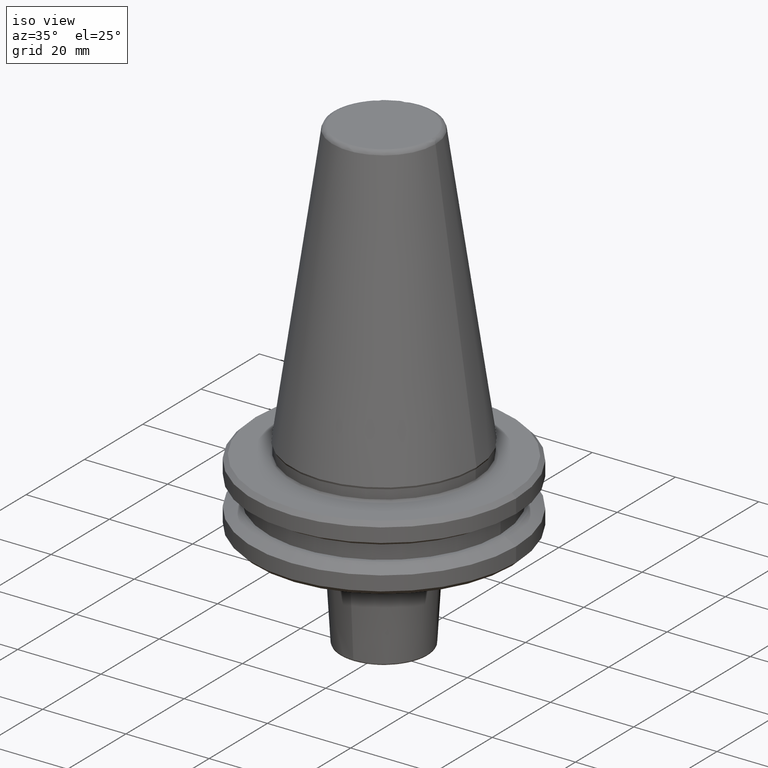
[diagram: clean part render]
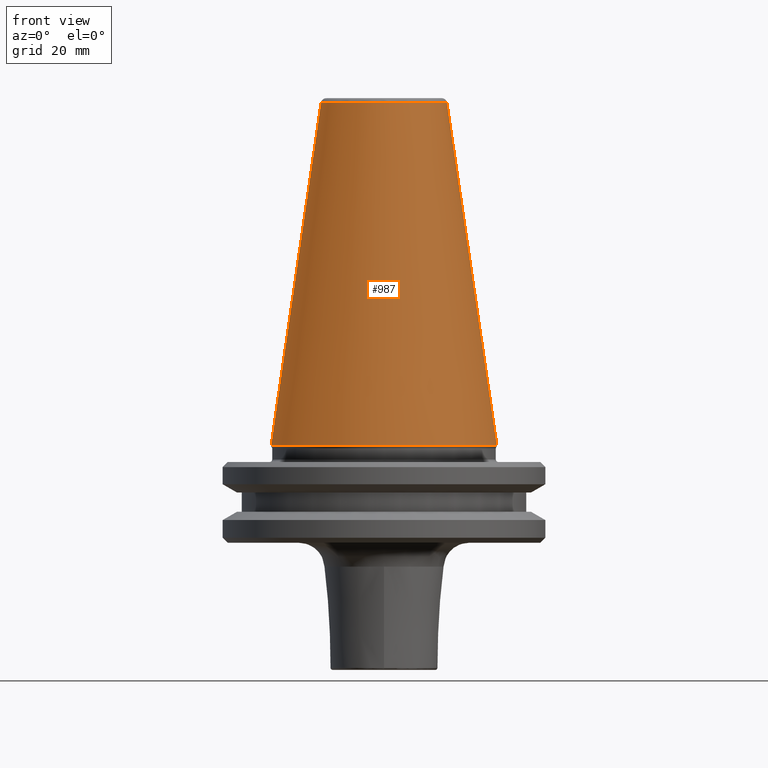
[diagram: tour spotlight — one face highlighted and labeled with its STEP entity id]
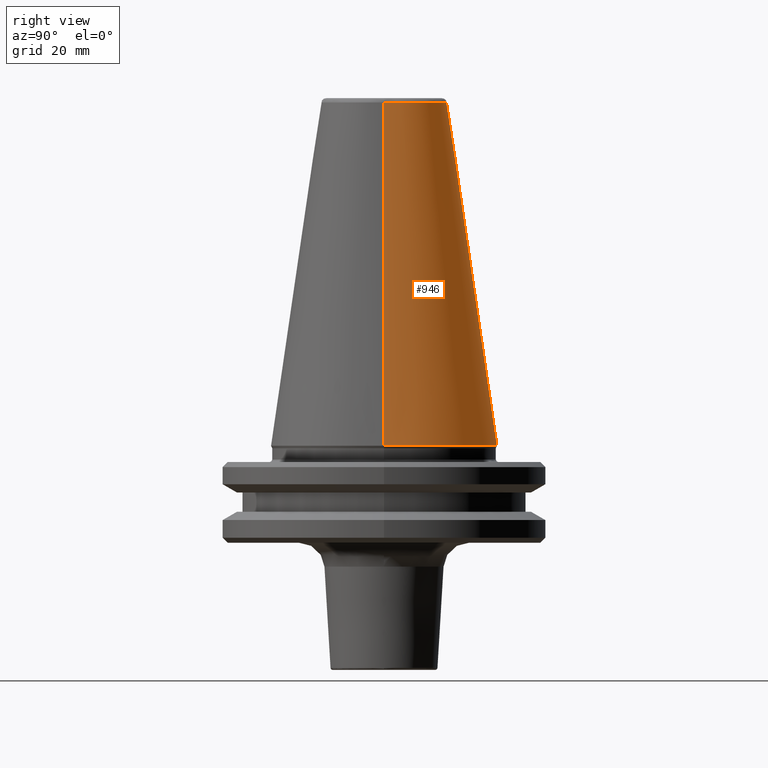
[diagram: tour spotlight — one face highlighted and labeled with its STEP entity id]
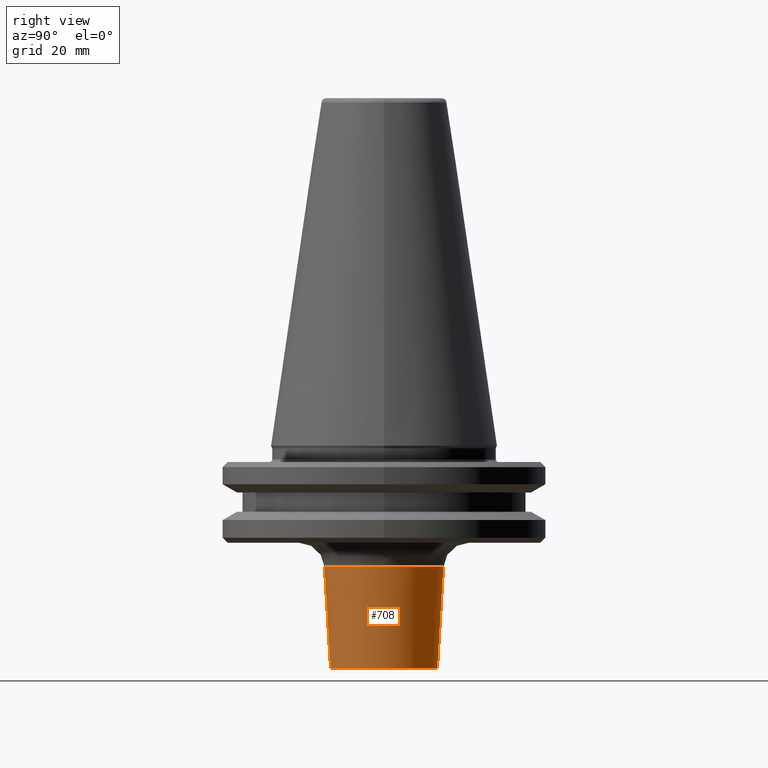
[diagram: tour spotlight — one face highlighted and labeled with its STEP entity id]
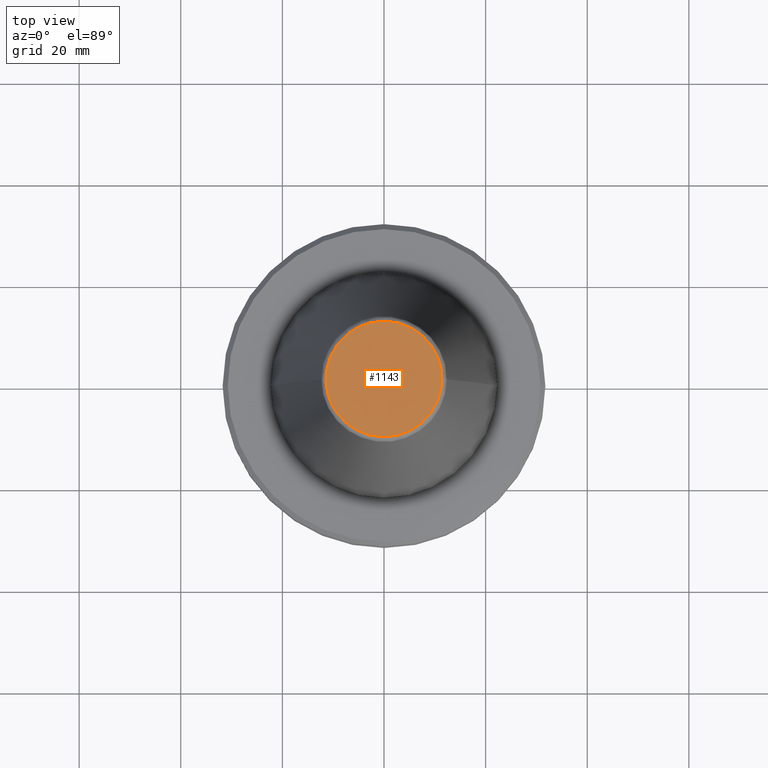
[diagram: tour spotlight — one face highlighted and labeled with its STEP entity id]
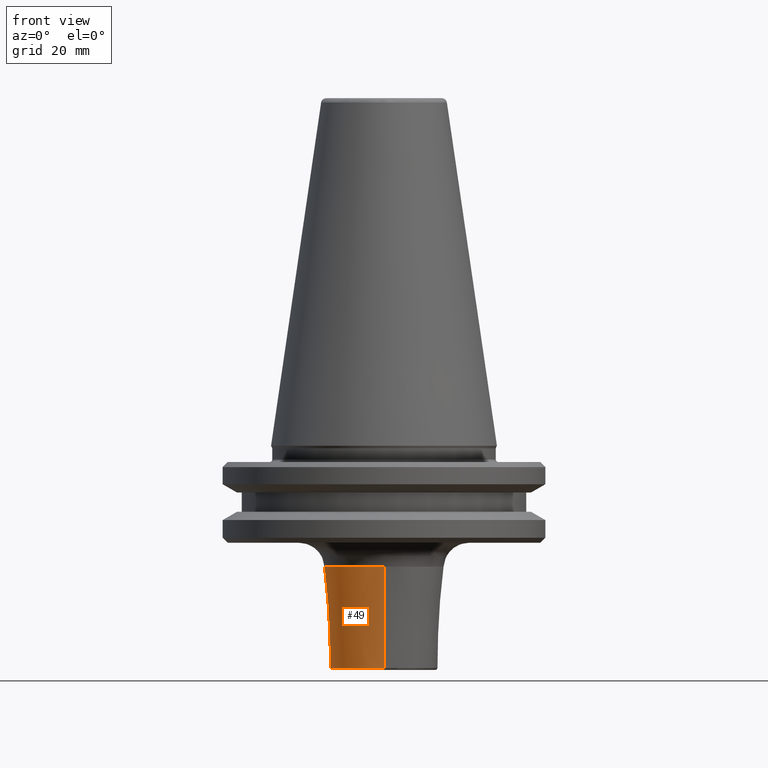
[diagram: tour spotlight — one face highlighted and labeled with its STEP entity id]
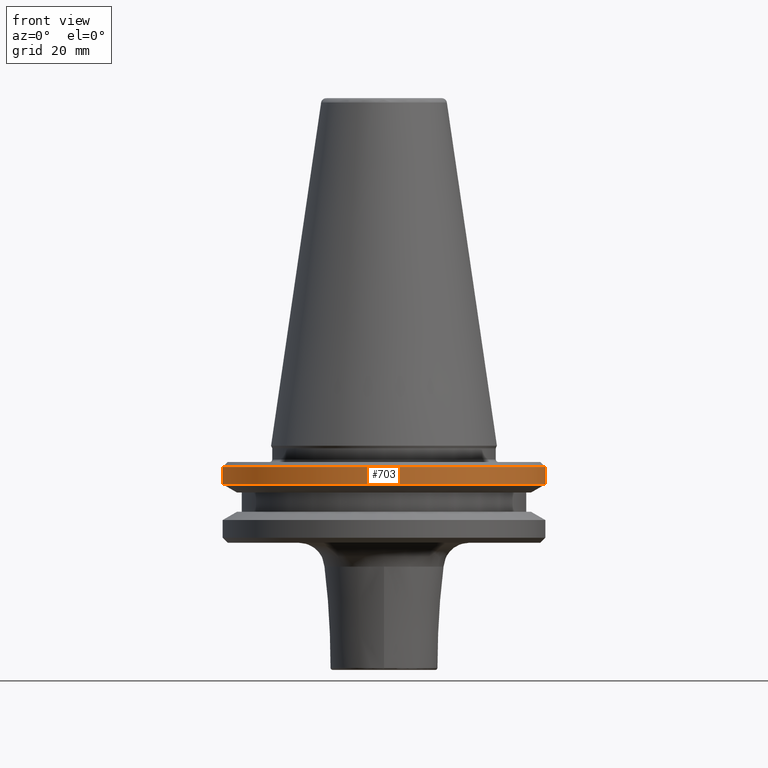
[diagram: tour spotlight — one face highlighted and labeled with its STEP entity id]
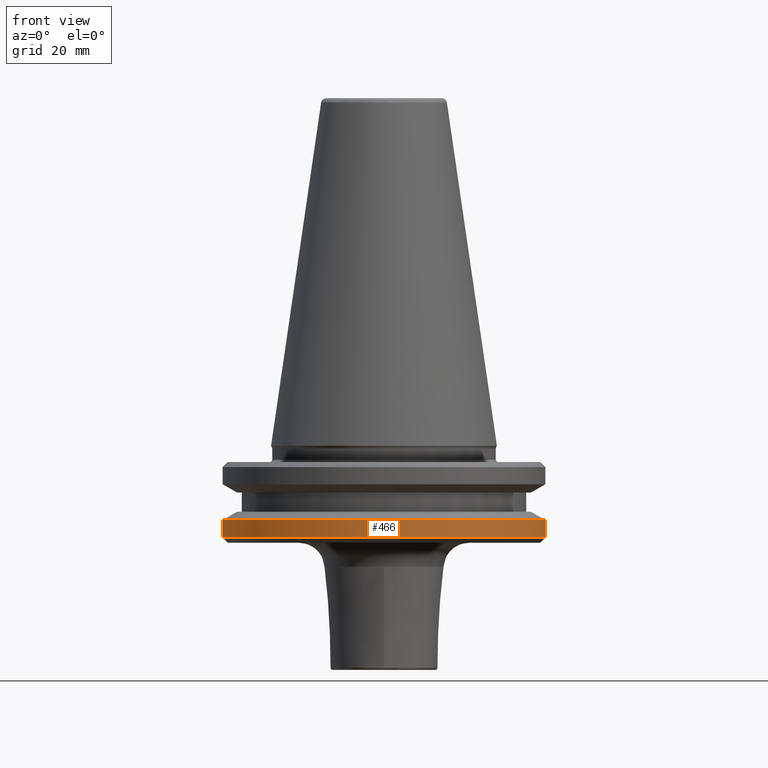
[diagram: tour spotlight — one face highlighted and labeled with its STEP entity id]
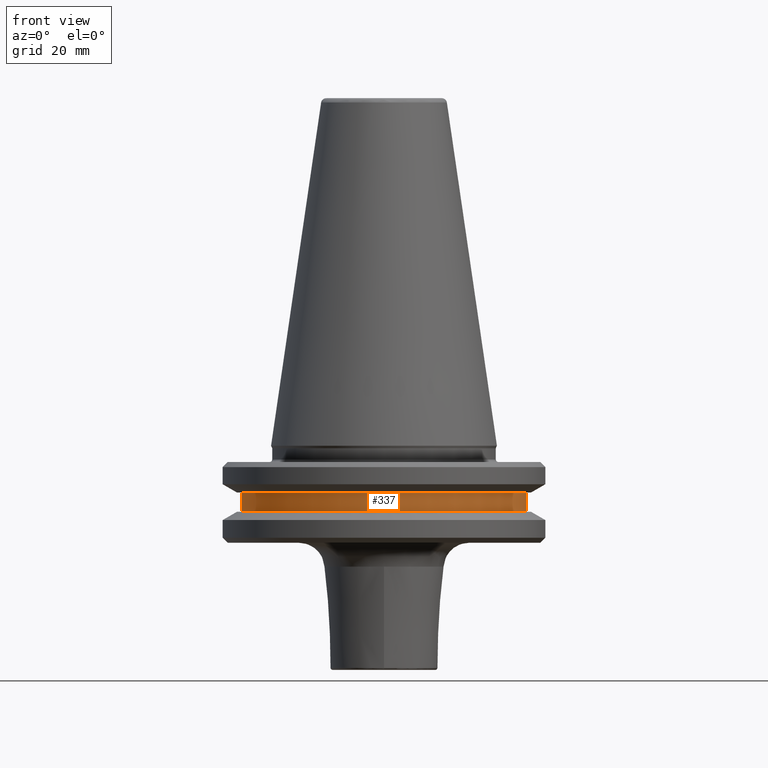
[diagram: tour spotlight — one face highlighted and labeled with its STEP entity id]
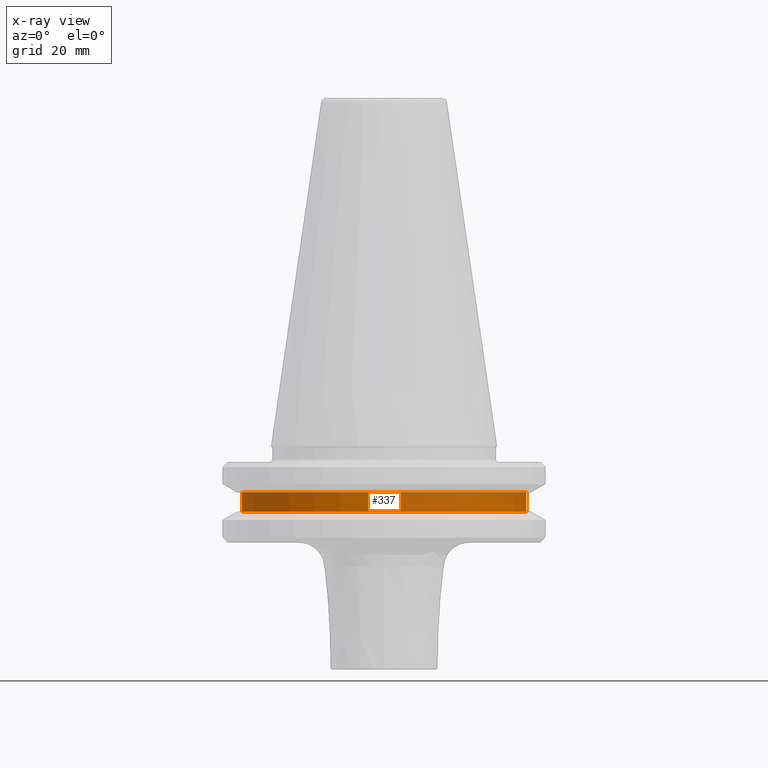
[diagram: x-ray of the same camera — body ghosted, this tour face saturated]
A machine part: a face-by-face anatomy tour. The part has 36 B-rep faces; the first image is the clean iso view, then the 8 largest visible faces are spotlighted one at a time (largest first), each with its STEP entity span.

Face 1 — front view, entity #987. In plain terms, the highlighted conical surface has half-angle 8.297 deg.
Definition (entity closure, byte-faithful):
#30 = EDGE_CURVE ( 'NONE', #1013, #96, #119, .T. ) ;
#73 = AXIS2_PLACEMENT_3D ( 'NONE', #425, #368, #396 ) ;
#96 = VERTEX_POINT ( 'NONE', #136 ) ;
#112 = VERTEX_POINT ( 'NONE', #157 ) ;
#119 = CIRCLE ( 'NONE', #1146, 12.37469537611110800 ) ;
#136 = CARTESIAN_POINT ( 'NONE',  ( -12.37469537611110800, 0.0000000000000000000, 67.54430822726729400 ) ) ;
#151 = DIRECTION ( 'NONE',  ( -1.000000000000000000, 0.0000000000000000000, 0.0000000000000000000 ) ) ;
#157 = CARTESIAN_POINT ( 'NONE',  ( -22.22500000000000500, 2.721777511104993200E-015, 0.0000000000000000000 ) ) ;
#311 = VECTOR ( 'NONE', #631, 1000.000000000000000 ) ;
#319 = CARTESIAN_POINT ( 'NONE',  ( 12.37469537611110800, 2.118620309691396900E-015, 67.54430822726729400 ) ) ;
#368 = DIRECTION ( 'NONE',  ( 0.0000000000000000000, 0.0000000000000000000, -1.000000000000000000 ) ) ;
#396 = DIRECTION ( 'NONE',  ( -1.000000000000000000, 0.0000000000000000000, 0.0000000000000000000 ) ) ;
#398 = DIRECTION ( 'NONE',  ( -1.000000000000000000, 0.0000000000000000000, 6.244223985518314900E-016 ) ) ;
#419 = DIRECTION ( 'NONE',  ( -0.0000000000000000000, -0.0000000000000000000, 1.000000000000000000 ) ) ;
#425 = CARTESIAN_POINT ( 'NONE',  ( 0.0000000000000000000, 0.0000000000000000000, 0.0000000000000000000 ) ) ;
#438 = CARTESIAN_POINT ( 'NONE',  ( 0.0000000000000000000, 0.0000000000000000000, 0.0000000000000000000 ) ) ;
#456 = CARTESIAN_POINT ( 'NONE',  ( 0.0000000000000000000, 0.0000000000000000000, 67.54430822726729400 ) ) ;
#534 = EDGE_CURVE ( 'NONE', #1013, #1304, #776, .T. ) ;
#631 = DIRECTION ( 'NONE',  ( -0.1443082272673070500, 0.0000000000000000000, -0.9895327864921743500 ) ) ;
#640 = CARTESIAN_POINT ( 'NONE',  ( -22.22500000000000100, 0.0000000000000000000, 0.0000000000000000000 ) ) ;
#658 = DIRECTION ( 'NONE',  ( 0.0000000000000000000, 0.0000000000000000000, -1.000000000000000000 ) ) ;
#725 = CIRCLE ( 'NONE', #827, 22.22500000000000100 ) ;
#765 = ORIENTED_EDGE ( 'NONE', *, *, #864, .T. ) ;
#776 = LINE ( 'NONE', #1265, #1048 ) ;
#827 = AXIS2_PLACEMENT_3D ( 'NONE', #438, #419, #398 ) ;
#864 = EDGE_CURVE ( 'NONE', #96, #112, #1002, .T. ) ;
#926 = CONICAL_SURFACE ( 'NONE', #73, 22.22500000000000100, 0.1448138465474190500 ) ;
#959 = CARTESIAN_POINT ( 'NONE',  ( 22.22500000000000500, 0.0000000000000000000, 0.0000000000000000000 ) ) ;
#987 = ADVANCED_FACE ( 'NONE', ( #1001 ), #926, .T. ) ;
#1001 = FACE_OUTER_BOUND ( 'NONE', #1226, .T. ) ;
#1002 = LINE ( 'NONE', #640, #311 ) ;
#1013 = VERTEX_POINT ( 'NONE', #319 ) ;
#1044 = ORIENTED_EDGE ( 'NONE', *, *, #30, .T. ) ;
#1048 = VECTOR ( 'NONE', #1383, 1000.000000000000000 ) ;
#1146 = AXIS2_PLACEMENT_3D ( 'NONE', #456, #658, #151 ) ;
#1226 = EDGE_LOOP ( 'NONE', ( #1421, #1044, #765, #1326 ) ) ;
#1265 = CARTESIAN_POINT ( 'NONE',  ( 22.22500000000000100, 2.721777511104992800E-015, 0.0000000000000000000 ) ) ;
#1304 = VERTEX_POINT ( 'NONE', #959 ) ;
#1326 = ORIENTED_EDGE ( 'NONE', *, *, #1448, .T. ) ;
#1383 = DIRECTION ( 'NONE',  ( 0.1443082272673070500, 1.767266086135363700E-017, -0.9895327864921743500 ) ) ;
#1421 = ORIENTED_EDGE ( 'NONE', *, *, #534, .F. ) ;
#1448 = EDGE_CURVE ( 'NONE', #112, #1304, #725, .T. ) ;

Face 2 — right view, entity #946. In plain terms, the highlighted conical surface has half-angle 8.297 deg.
Definition (entity closure, byte-faithful):
#43 = CIRCLE ( 'NONE', #1253, 12.37469537611110800 ) ;
#47 = EDGE_CURVE ( 'NONE', #96, #1013, #43, .T. ) ;
#96 = VERTEX_POINT ( 'NONE', #136 ) ;
#112 = VERTEX_POINT ( 'NONE', #157 ) ;
#136 = CARTESIAN_POINT ( 'NONE',  ( -12.37469537611110800, 0.0000000000000000000, 67.54430822726729400 ) ) ;
#157 = CARTESIAN_POINT ( 'NONE',  ( -22.22500000000000500, 2.721777511104993200E-015, 0.0000000000000000000 ) ) ;
#238 = DIRECTION ( 'NONE',  ( 0.0000000000000000000, 0.0000000000000000000, -1.000000000000000000 ) ) ;
#267 = DIRECTION ( 'NONE',  ( -1.000000000000000000, 0.0000000000000000000, 0.0000000000000000000 ) ) ;
#311 = VECTOR ( 'NONE', #631, 1000.000000000000000 ) ;
#319 = CARTESIAN_POINT ( 'NONE',  ( 12.37469537611110800, 2.118620309691396900E-015, 67.54430822726729400 ) ) ;
#388 = CONICAL_SURFACE ( 'NONE', #1498, 22.22500000000000100, 0.1448138465474190500 ) ;
#391 = DIRECTION ( 'NONE',  ( -0.0000000000000000000, -0.0000000000000000000, 1.000000000000000000 ) ) ;
#406 = ORIENTED_EDGE ( 'NONE', *, *, #534, .T. ) ;
#451 = EDGE_LOOP ( 'NONE', ( #852, #406, #1469, #1450 ) ) ;
#526 = DIRECTION ( 'NONE',  ( 0.0000000000000000000, 0.0000000000000000000, -1.000000000000000000 ) ) ;
#534 = EDGE_CURVE ( 'NONE', #1013, #1304, #776, .T. ) ;
#549 = CARTESIAN_POINT ( 'NONE',  ( 0.0000000000000000000, 0.0000000000000000000, 0.0000000000000000000 ) ) ;
#566 = DIRECTION ( 'NONE',  ( -1.000000000000000000, 0.0000000000000000000, 0.0000000000000000000 ) ) ;
#568 = FACE_OUTER_BOUND ( 'NONE', #451, .T. ) ;
#631 = DIRECTION ( 'NONE',  ( -0.1443082272673070500, 0.0000000000000000000, -0.9895327864921743500 ) ) ;
#632 = CARTESIAN_POINT ( 'NONE',  ( 0.0000000000000000000, 0.0000000000000000000, 67.54430822726729400 ) ) ;
#640 = CARTESIAN_POINT ( 'NONE',  ( -22.22500000000000100, 0.0000000000000000000, 0.0000000000000000000 ) ) ;
#749 = CIRCLE ( 'NONE', #1079, 22.22500000000000100 ) ;
#776 = LINE ( 'NONE', #1265, #1048 ) ;
#810 = CARTESIAN_POINT ( 'NONE',  ( 0.0000000000000000000, 0.0000000000000000000, 0.0000000000000000000 ) ) ;
#852 = ORIENTED_EDGE ( 'NONE', *, *, #47, .T. ) ;
#864 = EDGE_CURVE ( 'NONE', #96, #112, #1002, .T. ) ;
#946 = ADVANCED_FACE ( 'NONE', ( #568 ), #388, .T. ) ;
#959 = CARTESIAN_POINT ( 'NONE',  ( 22.22500000000000500, 0.0000000000000000000, 0.0000000000000000000 ) ) ;
#1002 = LINE ( 'NONE', #640, #311 ) ;
#1013 = VERTEX_POINT ( 'NONE', #319 ) ;
#1048 = VECTOR ( 'NONE', #1383, 1000.000000000000000 ) ;
#1079 = AXIS2_PLACEMENT_3D ( 'NONE', #810, #391, #1125 ) ;
#1125 = DIRECTION ( 'NONE',  ( -1.000000000000000000, 0.0000000000000000000, 6.244223985518314900E-016 ) ) ;
#1253 = AXIS2_PLACEMENT_3D ( 'NONE', #632, #238, #267 ) ;
#1265 = CARTESIAN_POINT ( 'NONE',  ( 22.22500000000000100, 2.721777511104992800E-015, 0.0000000000000000000 ) ) ;
#1304 = VERTEX_POINT ( 'NONE', #959 ) ;
#1368 = EDGE_CURVE ( 'NONE', #1304, #112, #749, .T. ) ;
#1383 = DIRECTION ( 'NONE',  ( 0.1443082272673070500, 1.767266086135363700E-017, -0.9895327864921743500 ) ) ;
#1450 = ORIENTED_EDGE ( 'NONE', *, *, #864, .F. ) ;
#1469 = ORIENTED_EDGE ( 'NONE', *, *, #1368, .T. ) ;
#1498 = AXIS2_PLACEMENT_3D ( 'NONE', #549, #526, #566 ) ;

Face 3 — right view, entity #708. In plain terms, the highlighted conical surface has half-angle 3.434 deg.
Definition (entity closure, byte-faithful):
#145 = CIRCLE ( 'NONE', #823, 10.52256258502253100 ) ;
#160 = DIRECTION ( 'NONE',  ( 1.000000000000000000, 0.0000000000000000000, -1.318860087139576000E-015 ) ) ;
#162 = DIRECTION ( 'NONE',  ( 0.0000000000000000000, 0.0000000000000000000, 1.000000000000000000 ) ) ;
#165 = CARTESIAN_POINT ( 'NONE',  ( 0.0000000000000000000, 0.0000000000000000000, -43.72395691629116500 ) ) ;
#190 = ORIENTED_EDGE ( 'NONE', *, *, #1436, .T. ) ;
#230 = VERTEX_POINT ( 'NONE', #513 ) ;
#332 = EDGE_LOOP ( 'NONE', ( #446, #790, #1531, #1374, #190, #1427 ) ) ;
#366 = AXIS2_PLACEMENT_3D ( 'NONE', #1033, #899, #981 ) ;
#405 = CARTESIAN_POINT ( 'NONE',  ( 1.435037162066411100E-015, 11.71796768721838700, -23.80053854636027200 ) ) ;
#409 = AXIS2_PLACEMENT_3D ( 'NONE', #165, #162, #160 ) ;
#446 = ORIENTED_EDGE ( 'NONE', *, *, #464, .T. ) ;
#464 = EDGE_CURVE ( 'NONE', #1426, #564, #145, .T. ) ;
#513 = CARTESIAN_POINT ( 'NONE',  ( 11.71796768721838500, 0.0000000000000000000, -23.80053854636027200 ) ) ;
#518 = EDGE_CURVE ( 'NONE', #1426, #908, #1349, .T. ) ;
#557 = CARTESIAN_POINT ( 'NONE',  ( 0.0000000000000000000, -11.71796768721838700, -23.80053854636027200 ) ) ;
#564 = VERTEX_POINT ( 'NONE', #902 ) ;
#570 = CARTESIAN_POINT ( 'NONE',  ( 0.0000000000000000000, 0.0000000000000000000, -23.80053854636027200 ) ) ;
#635 = DIRECTION ( 'NONE',  ( 1.000000000000000000, 0.0000000000000000000, 0.0000000000000000000 ) ) ;
#638 = DIRECTION ( 'NONE',  ( -0.0000000000000000000, -0.0000000000000000000, -1.000000000000000000 ) ) ;
#643 = DIRECTION ( 'NONE',  ( -0.0000000000000000000, -0.0000000000000000000, -1.000000000000000000 ) ) ;
#645 = CARTESIAN_POINT ( 'NONE',  ( 0.0000000000000000000, 0.0000000000000000000, -23.80053854636027200 ) ) ;
#693 = DIRECTION ( 'NONE',  ( 1.000000000000000000, 0.0000000000000000000, 0.0000000000000000000 ) ) ;
#708 = ADVANCED_FACE ( 'NONE', ( #1429 ), #1471, .T. ) ;
#710 = DIRECTION ( 'NONE',  ( 7.334690213358278900E-018, 0.05989229072794669000, 0.9982048454657787000 ) ) ;
#790 = ORIENTED_EDGE ( 'NONE', *, *, #1023, .T. ) ;
#791 = VECTOR ( 'NONE', #710, 1000.000000000000000 ) ;
#794 = VERTEX_POINT ( 'NONE', #846 ) ;
#823 = AXIS2_PLACEMENT_3D ( 'NONE', #1025, #1135, #1142 ) ;
#846 = CARTESIAN_POINT ( 'NONE',  ( 1.361839710461982500E-015, 10.52256258502253100, -43.72395691629116500 ) ) ;
#859 = EDGE_CURVE ( 'NONE', #794, #1288, #1156, .T. ) ;
#892 = AXIS2_PLACEMENT_3D ( 'NONE', #645, #638, #635 ) ;
#899 = DIRECTION ( 'NONE',  ( 0.0000000000000000000, -1.480396193504606100E-016, 1.000000000000000000 ) ) ;
#902 = CARTESIAN_POINT ( 'NONE',  ( 10.52256258502253100, 0.0000000000000000000, -43.72395691629117200 ) ) ;
#908 = VERTEX_POINT ( 'NONE', #557 ) ;
#914 = CARTESIAN_POINT ( 'NONE',  ( 0.0000000000000000000, -11.71796768721838700, -23.80053854636027600 ) ) ;
#940 = AXIS2_PLACEMENT_3D ( 'NONE', #570, #643, #693 ) ;
#960 = CARTESIAN_POINT ( 'NONE',  ( 0.0000000000000000000, -10.52256258502253100, -43.72395691629116500 ) ) ;
#981 = DIRECTION ( 'NONE',  ( 0.0000000000000000000, -1.000000000000000000, -2.960792387009211800E-016 ) ) ;
#1023 = EDGE_CURVE ( 'NONE', #564, #794, #1504, .T. ) ;
#1025 = CARTESIAN_POINT ( 'NONE',  ( 0.0000000000000000000, 0.0000000000000000000, -43.72395691629116500 ) ) ;
#1033 = CARTESIAN_POINT ( 'NONE',  ( 0.0000000000000000000, 0.0000000000000000000, -23.80053854636027200 ) ) ;
#1135 = DIRECTION ( 'NONE',  ( 0.0000000000000000000, 0.0000000000000000000, 1.000000000000000000 ) ) ;
#1136 = CIRCLE ( 'NONE', #892, 11.71796768721838500 ) ;
#1142 = DIRECTION ( 'NONE',  ( 1.000000000000000000, 0.0000000000000000000, -1.318860087139576000E-015 ) ) ;
#1156 = LINE ( 'NONE', #1281, #791 ) ;
#1170 = CIRCLE ( 'NONE', #940, 11.71796768721838500 ) ;
#1208 = EDGE_CURVE ( 'NONE', #1288, #230, #1170, .T. ) ;
#1235 = VECTOR ( 'NONE', #1397, 1000.000000000000000 ) ;
#1281 = CARTESIAN_POINT ( 'NONE',  ( 1.435037162066411100E-015, 11.71796768721838700, -23.80053854636026900 ) ) ;
#1288 = VERTEX_POINT ( 'NONE', #405 ) ;
#1349 = LINE ( 'NONE', #914, #1235 ) ;
#1374 = ORIENTED_EDGE ( 'NONE', *, *, #1208, .T. ) ;
#1397 = DIRECTION ( 'NONE',  ( 0.0000000000000000000, -0.05989229072794698100, 0.9982048454657787000 ) ) ;
#1426 = VERTEX_POINT ( 'NONE', #960 ) ;
#1427 = ORIENTED_EDGE ( 'NONE', *, *, #518, .F. ) ;
#1429 = FACE_OUTER_BOUND ( 'NONE', #332, .T. ) ;
#1436 = EDGE_CURVE ( 'NONE', #230, #908, #1136, .T. ) ;
#1471 = CONICAL_SURFACE ( 'NONE', #366, 11.71796768721838700, 0.05992815512120799900 ) ;
#1504 = CIRCLE ( 'NONE', #409, 10.52256258502253100 ) ;
#1531 = ORIENTED_EDGE ( 'NONE', *, *, #859, .T. ) ;

Face 4 — top view, entity #1143. In plain terms, the highlighted planar face has unit normal (0, 0, 1).
Definition (entity closure, byte-faithful):
#21 = CARTESIAN_POINT ( 'NONE',  ( -11.38516258961893100, 1.418516855507481500E-015, 68.39999999999999100 ) ) ;
#37 = CARTESIAN_POINT ( 'NONE',  ( -11.38516258961893400, -22.77032517923785800, 68.39999999999999100 ) ) ;
#51 = CARTESIAN_POINT ( 'NONE',  ( 11.38516258961893100, -22.77032517923785800, 68.39999999999999100 ) ) ;
#69 = CARTESIAN_POINT ( 'NONE',  ( 11.38516258961893100, 0.0000000000000000000, 68.39999999999999100 ) ) ;
#110 = EDGE_LOOP ( 'NONE', ( #832, #514 ) ) ;
#153 =( BOUNDED_CURVE ( )  B_SPLINE_CURVE ( 3, ( #69, #51, #37, #21 ),
 .UNSPECIFIED., .F., .F. ) 
 B_SPLINE_CURVE_WITH_KNOTS ( ( 4, 4 ),
 ( 0.0000000000000000000, 1.000000000000000000 ),
 .UNSPECIFIED. ) 
 CURVE ( )  GEOMETRIC_REPRESENTATION_ITEM ( )  RATIONAL_B_SPLINE_CURVE ( ( 1.000000000000000000, 0.3333333333333333700, 0.3333333333333333700, 1.000000000000000000 ) ) 
 REPRESENTATION_ITEM ( '' )  );
#218 = AXIS2_PLACEMENT_3D ( 'NONE', #1327, #1394, #1345 ) ;
#329 = CARTESIAN_POINT ( 'NONE',  ( -11.38516258961893100, 1.418516855507481500E-015, 68.39999999999999100 ) ) ;
#365 =( BOUNDED_CURVE ( )  B_SPLINE_CURVE ( 3, ( #680, #730, #829, #676 ),
 .UNSPECIFIED., .F., .F. ) 
 B_SPLINE_CURVE_WITH_KNOTS ( ( 4, 4 ),
 ( 0.0000000000000000000, 1.000000000000000000 ),
 .UNSPECIFIED. ) 
 CURVE ( )  GEOMETRIC_REPRESENTATION_ITEM ( )  RATIONAL_B_SPLINE_CURVE ( ( 1.000000000000000000, 0.3333333333333333700, 0.3333333333333333700, 1.000000000000000000 ) ) 
 REPRESENTATION_ITEM ( '' )  );
#514 = ORIENTED_EDGE ( 'NONE', *, *, #1094, .F. ) ;
#676 = CARTESIAN_POINT ( 'NONE',  ( 11.38516258961893100, 0.0000000000000000000, 68.39999999999999100 ) ) ;
#680 = CARTESIAN_POINT ( 'NONE',  ( -11.38516258961893100, 1.418516855507481500E-015, 68.39999999999999100 ) ) ;
#730 = CARTESIAN_POINT ( 'NONE',  ( -11.38516258961892700, 22.77032517923785800, 68.39999999999999100 ) ) ;
#829 = CARTESIAN_POINT ( 'NONE',  ( 11.38516258961893100, 22.77032517923785800, 68.39999999999999100 ) ) ;
#832 = ORIENTED_EDGE ( 'NONE', *, *, #856, .F. ) ;
#856 = EDGE_CURVE ( 'NONE', #1329, #1129, #365, .T. ) ;
#919 = CARTESIAN_POINT ( 'NONE',  ( 11.38516258961893100, 0.0000000000000000000, 68.39999999999999100 ) ) ;
#1094 = EDGE_CURVE ( 'NONE', #1129, #1329, #153, .T. ) ;
#1129 = VERTEX_POINT ( 'NONE', #919 ) ;
#1143 = ADVANCED_FACE ( 'NONE', ( #1392 ), #1252, .T. ) ;
#1252 = PLANE ( 'NONE',  #218 ) ;
#1327 = CARTESIAN_POINT ( 'NONE',  ( 0.0000000000000000000, -8.337524199435086500E-014, 68.39999999999999100 ) ) ;
#1329 = VERTEX_POINT ( 'NONE', #329 ) ;
#1345 = DIRECTION ( 'NONE',  ( 1.000000000000000000, 0.0000000000000000000, -0.0000000000000000000 ) ) ;
#1392 = FACE_OUTER_BOUND ( 'NONE', #110, .T. ) ;
#1394 = DIRECTION ( 'NONE',  ( 0.0000000000000000000, 0.0000000000000000000, 1.000000000000000000 ) ) ;

Face 5 — front view, entity #49. In plain terms, the highlighted conical surface has half-angle 3.434 deg.
Definition (entity closure, byte-faithful):
#2 = CARTESIAN_POINT ( 'NONE',  ( -10.52256258502253100, 1.288642258857554200E-015, -43.72395691629115800 ) ) ;
#49 = ADVANCED_FACE ( 'NONE', ( #1134 ), #194, .T. ) ;
#194 = CONICAL_SURFACE ( 'NONE', #1297, 11.71796768721838700, 0.05992815512120799900 ) ;
#303 = DIRECTION ( 'NONE',  ( 1.000000000000000000, 0.0000000000000000000, -1.318860087139576000E-015 ) ) ;
#318 = DIRECTION ( 'NONE',  ( 0.0000000000000000000, 0.0000000000000000000, 1.000000000000000000 ) ) ;
#323 = CARTESIAN_POINT ( 'NONE',  ( 0.0000000000000000000, 0.0000000000000000000, -43.72395691629116500 ) ) ;
#326 = CARTESIAN_POINT ( 'NONE',  ( -11.71796768721838500, 1.740649254289672300E-015, -23.80053854636027200 ) ) ;
#339 = DIRECTION ( 'NONE',  ( 0.0000000000000000000, -1.000000000000000000, -2.960792387009211800E-016 ) ) ;
#363 = DIRECTION ( 'NONE',  ( 0.0000000000000000000, -1.480396193504606100E-016, 1.000000000000000000 ) ) ;
#371 = DIRECTION ( 'NONE',  ( 1.000000000000000000, 0.0000000000000000000, 0.0000000000000000000 ) ) ;
#376 = DIRECTION ( 'NONE',  ( -0.0000000000000000000, -0.0000000000000000000, -1.000000000000000000 ) ) ;
#379 = CARTESIAN_POINT ( 'NONE',  ( 0.0000000000000000000, 0.0000000000000000000, -23.80053854636027200 ) ) ;
#399 = DIRECTION ( 'NONE',  ( 1.000000000000000000, 0.0000000000000000000, 0.0000000000000000000 ) ) ;
#400 = DIRECTION ( 'NONE',  ( -0.0000000000000000000, -0.0000000000000000000, -1.000000000000000000 ) ) ;
#401 = AXIS2_PLACEMENT_3D ( 'NONE', #822, #843, #842 ) ;
#402 = CARTESIAN_POINT ( 'NONE',  ( 0.0000000000000000000, 0.0000000000000000000, -23.80053854636027200 ) ) ;
#405 = CARTESIAN_POINT ( 'NONE',  ( 1.435037162066411100E-015, 11.71796768721838700, -23.80053854636027200 ) ) ;
#441 = CARTESIAN_POINT ( 'NONE',  ( 0.0000000000000000000, 0.0000000000000000000, -23.80053854636027200 ) ) ;
#494 = CIRCLE ( 'NONE', #401, 10.52256258502253100 ) ;
#518 = EDGE_CURVE ( 'NONE', #1426, #908, #1349, .T. ) ;
#557 = CARTESIAN_POINT ( 'NONE',  ( 0.0000000000000000000, -11.71796768721838700, -23.80053854636027200 ) ) ;
#565 = CIRCLE ( 'NONE', #641, 11.71796768721838500 ) ;
#626 = CIRCLE ( 'NONE', #767, 10.52256258502253100 ) ;
#641 = AXIS2_PLACEMENT_3D ( 'NONE', #402, #400, #399 ) ;
#649 = EDGE_LOOP ( 'NONE', ( #992, #1449, #851, #789, #788, #886 ) ) ;
#659 = CIRCLE ( 'NONE', #897, 11.71796768721838500 ) ;
#710 = DIRECTION ( 'NONE',  ( 7.334690213358278900E-018, 0.05989229072794669000, 0.9982048454657787000 ) ) ;
#762 = EDGE_CURVE ( 'NONE', #1107, #1426, #494, .T. ) ;
#767 = AXIS2_PLACEMENT_3D ( 'NONE', #323, #318, #303 ) ;
#788 = ORIENTED_EDGE ( 'NONE', *, *, #965, .T. ) ;
#789 = ORIENTED_EDGE ( 'NONE', *, *, #518, .T. ) ;
#791 = VECTOR ( 'NONE', #710, 1000.000000000000000 ) ;
#794 = VERTEX_POINT ( 'NONE', #846 ) ;
#822 = CARTESIAN_POINT ( 'NONE',  ( 0.0000000000000000000, 0.0000000000000000000, -43.72395691629116500 ) ) ;
#842 = DIRECTION ( 'NONE',  ( 1.000000000000000000, 0.0000000000000000000, -1.318860087139576000E-015 ) ) ;
#843 = DIRECTION ( 'NONE',  ( 0.0000000000000000000, 0.0000000000000000000, 1.000000000000000000 ) ) ;
#846 = CARTESIAN_POINT ( 'NONE',  ( 1.361839710461982500E-015, 10.52256258502253100, -43.72395691629116500 ) ) ;
#851 = ORIENTED_EDGE ( 'NONE', *, *, #762, .T. ) ;
#859 = EDGE_CURVE ( 'NONE', #794, #1288, #1156, .T. ) ;
#886 = ORIENTED_EDGE ( 'NONE', *, *, #977, .T. ) ;
#897 = AXIS2_PLACEMENT_3D ( 'NONE', #379, #376, #371 ) ;
#908 = VERTEX_POINT ( 'NONE', #557 ) ;
#914 = CARTESIAN_POINT ( 'NONE',  ( 0.0000000000000000000, -11.71796768721838700, -23.80053854636027600 ) ) ;
#960 = CARTESIAN_POINT ( 'NONE',  ( 0.0000000000000000000, -10.52256258502253100, -43.72395691629116500 ) ) ;
#965 = EDGE_CURVE ( 'NONE', #908, #1012, #565, .T. ) ;
#977 = EDGE_CURVE ( 'NONE', #1012, #1288, #659, .T. ) ;
#992 = ORIENTED_EDGE ( 'NONE', *, *, #859, .F. ) ;
#1012 = VERTEX_POINT ( 'NONE', #326 ) ;
#1107 = VERTEX_POINT ( 'NONE', #2 ) ;
#1134 = FACE_OUTER_BOUND ( 'NONE', #649, .T. ) ;
#1156 = LINE ( 'NONE', #1281, #791 ) ;
#1235 = VECTOR ( 'NONE', #1397, 1000.000000000000000 ) ;
#1281 = CARTESIAN_POINT ( 'NONE',  ( 1.435037162066411100E-015, 11.71796768721838700, -23.80053854636026900 ) ) ;
#1288 = VERTEX_POINT ( 'NONE', #405 ) ;
#1297 = AXIS2_PLACEMENT_3D ( 'NONE', #441, #363, #339 ) ;
#1349 = LINE ( 'NONE', #914, #1235 ) ;
#1397 = DIRECTION ( 'NONE',  ( 0.0000000000000000000, -0.05989229072794698100, 0.9982048454657787000 ) ) ;
#1426 = VERTEX_POINT ( 'NONE', #960 ) ;
#1449 = ORIENTED_EDGE ( 'NONE', *, *, #1477, .T. ) ;
#1477 = EDGE_CURVE ( 'NONE', #794, #1107, #626, .T. ) ;

Face 6 — front view, entity #703. In plain terms, the highlighted cylindrical surface (partial cylindrical patch) has radius 31.75 mm, axis along (0, 0, 1).
Definition (entity closure, byte-faithful):
#14 = VERTEX_POINT ( 'NONE', #582 ) ;
#24 = AXIS2_PLACEMENT_3D ( 'NONE', #310, #301, #298 ) ;
#78 = AXIS2_PLACEMENT_3D ( 'NONE', #420, #416, #414 ) ;
#114 = ORIENTED_EDGE ( 'NONE', *, *, #1010, .T. ) ;
#250 = CIRCLE ( 'NONE', #24, 31.75000000000000000 ) ;
#283 = CIRCLE ( 'NONE', #78, 31.74999999999983300 ) ;
#298 = DIRECTION ( 'NONE',  ( 1.000000000000000000, 0.0000000000000000000, 0.0000000000000000000 ) ) ;
#301 = DIRECTION ( 'NONE',  ( 0.0000000000000000000, 0.0000000000000000000, 1.000000000000000000 ) ) ;
#307 = EDGE_LOOP ( 'NONE', ( #1258, #114, #1076, #428 ) ) ;
#310 = CARTESIAN_POINT ( 'NONE',  ( 0.0000000000000000000, 0.0000000000000000000, -7.578163357943284800 ) ) ;
#392 = VERTEX_POINT ( 'NONE', #1120 ) ;
#414 = DIRECTION ( 'NONE',  ( 1.000000000000000000, 0.0000000000000000000, 0.0000000000000000000 ) ) ;
#416 = DIRECTION ( 'NONE',  ( -0.0000000000000000000, -0.0000000000000000000, 1.000000000000000000 ) ) ;
#420 = CARTESIAN_POINT ( 'NONE',  ( 0.0000000000000000000, 0.0000000000000000000, -4.199999999999926500 ) ) ;
#428 = ORIENTED_EDGE ( 'NONE', *, *, #958, .F. ) ;
#582 = CARTESIAN_POINT ( 'NONE',  ( 31.75000000000000000, 0.0000000000000000000, -7.578163357943284800 ) ) ;
#584 = CARTESIAN_POINT ( 'NONE',  ( 31.75000000000000000, 0.0000000000000000000, 113.5216080541959500 ) ) ;
#595 = DIRECTION ( 'NONE',  ( 0.0000000000000000000, 0.0000000000000000000, 1.000000000000000000 ) ) ;
#604 = VERTEX_POINT ( 'NONE', #961 ) ;
#618 = CARTESIAN_POINT ( 'NONE',  ( -31.75000000000000000, 3.888253587292846500E-015, -7.578163357943284800 ) ) ;
#703 = ADVANCED_FACE ( 'NONE', ( #1360 ), #971, .T. ) ;
#752 = AXIS2_PLACEMENT_3D ( 'NONE', #974, #989, #986 ) ;
#779 = EDGE_CURVE ( 'NONE', #888, #392, #982, .T. ) ;
#857 = DIRECTION ( 'NONE',  ( 0.0000000000000000000, 0.0000000000000000000, 1.000000000000000000 ) ) ;
#888 = VERTEX_POINT ( 'NONE', #618 ) ;
#896 = EDGE_CURVE ( 'NONE', #14, #604, #1380, .T. ) ;
#937 = VECTOR ( 'NONE', #857, 1000.000000000000000 ) ;
#958 = EDGE_CURVE ( 'NONE', #392, #604, #283, .T. ) ;
#961 = CARTESIAN_POINT ( 'NONE',  ( 31.74999999999983300, 0.0000000000000000000, -4.199999999999926500 ) ) ;
#971 = CYLINDRICAL_SURFACE ( 'NONE', #752, 31.75000000000000000 ) ;
#974 = CARTESIAN_POINT ( 'NONE',  ( 0.0000000000000000000, 0.0000000000000000000, 113.5216080541959500 ) ) ;
#982 = LINE ( 'NONE', #1047, #937 ) ;
#986 = DIRECTION ( 'NONE',  ( 1.000000000000000000, 0.0000000000000000000, 0.0000000000000000000 ) ) ;
#989 = DIRECTION ( 'NONE',  ( 0.0000000000000000000, 0.0000000000000000000, 1.000000000000000000 ) ) ;
#1010 = EDGE_CURVE ( 'NONE', #888, #14, #250, .T. ) ;
#1047 = CARTESIAN_POINT ( 'NONE',  ( -31.75000000000000000, 3.888253587292846500E-015, 113.5216080541959500 ) ) ;
#1076 = ORIENTED_EDGE ( 'NONE', *, *, #896, .T. ) ;
#1120 = CARTESIAN_POINT ( 'NONE',  ( -31.74999999999983300, 3.888253587292836200E-015, -4.199999999999926500 ) ) ;
#1228 = VECTOR ( 'NONE', #595, 1000.000000000000000 ) ;
#1258 = ORIENTED_EDGE ( 'NONE', *, *, #779, .F. ) ;
#1360 = FACE_OUTER_BOUND ( 'NONE', #307, .T. ) ;
#1380 = LINE ( 'NONE', #584, #1228 ) ;

Face 7 — front view, entity #466. In plain terms, the highlighted cylindrical surface (partial cylindrical patch) has radius 31.75 mm, axis along (0, 0, 1).
Definition (entity closure, byte-faithful):
#8 = CARTESIAN_POINT ( 'NONE',  ( -31.75000000000000000, 3.888253587292846500E-015, -14.62183664205671200 ) ) ;
#99 = CARTESIAN_POINT ( 'NONE',  ( 0.0000000000000000000, 0.0000000000000000000, -14.62183664205671200 ) ) ;
#103 = EDGE_CURVE ( 'NONE', #606, #1106, #1305, .T. ) ;
#140 = ORIENTED_EDGE ( 'NONE', *, *, #1475, .T. ) ;
#155 = CARTESIAN_POINT ( 'NONE',  ( -31.75000000000000000, 3.888253587292846500E-015, 113.5216080541959500 ) ) ;
#395 = DIRECTION ( 'NONE',  ( 0.0000000000000000000, 0.0000000000000000000, 1.000000000000000000 ) ) ;
#408 = CIRCLE ( 'NONE', #1118, 31.75000000000005700 ) ;
#466 = ADVANCED_FACE ( 'NONE', ( #838 ), #811, .T. ) ;
#475 = CARTESIAN_POINT ( 'NONE',  ( 31.75000000000000000, 0.0000000000000000000, 113.5216080541959500 ) ) ;
#478 = VECTOR ( 'NONE', #395, 1000.000000000000000 ) ;
#499 = CARTESIAN_POINT ( 'NONE',  ( 0.0000000000000000000, 0.0000000000000000000, -18.10000000000055900 ) ) ;
#592 = CARTESIAN_POINT ( 'NONE',  ( 31.74999999999947400, 0.0000000000000000000, -18.10000000000055900 ) ) ;
#606 = VERTEX_POINT ( 'NONE', #754 ) ;
#628 = EDGE_LOOP ( 'NONE', ( #922, #1245, #140, #1155 ) ) ;
#629 = AXIS2_PLACEMENT_3D ( 'NONE', #99, #1074, #1533 ) ;
#754 = CARTESIAN_POINT ( 'NONE',  ( -31.74999999999947400, 3.888253587292781800E-015, -18.10000000000055900 ) ) ;
#811 = CYLINDRICAL_SURFACE ( 'NONE', #938, 31.75000000000000000 ) ;
#838 = FACE_OUTER_BOUND ( 'NONE', #628, .T. ) ;
#849 = DIRECTION ( 'NONE',  ( 1.000000000000000000, 0.0000000000000000000, 0.0000000000000000000 ) ) ;
#870 = CARTESIAN_POINT ( 'NONE',  ( 31.75000000000000000, 0.0000000000000000000, -14.62183664205671200 ) ) ;
#922 = ORIENTED_EDGE ( 'NONE', *, *, #103, .F. ) ;
#931 = VERTEX_POINT ( 'NONE', #592 ) ;
#938 = AXIS2_PLACEMENT_3D ( 'NONE', #1175, #1178, #1367 ) ;
#943 = CIRCLE ( 'NONE', #629, 31.75000000000000000 ) ;
#991 = DIRECTION ( 'NONE',  ( 0.0000000000000000000, 0.0000000000000000000, 1.000000000000000000 ) ) ;
#1074 = DIRECTION ( 'NONE',  ( -0.0000000000000000000, -0.0000000000000000000, 1.000000000000000000 ) ) ;
#1106 = VERTEX_POINT ( 'NONE', #8 ) ;
#1111 = VECTOR ( 'NONE', #991, 1000.000000000000000 ) ;
#1118 = AXIS2_PLACEMENT_3D ( 'NONE', #499, #1291, #849 ) ;
#1155 = ORIENTED_EDGE ( 'NONE', *, *, #1316, .F. ) ;
#1165 = EDGE_CURVE ( 'NONE', #606, #931, #408, .T. ) ;
#1175 = CARTESIAN_POINT ( 'NONE',  ( 0.0000000000000000000, 0.0000000000000000000, 113.5216080541959500 ) ) ;
#1178 = DIRECTION ( 'NONE',  ( 0.0000000000000000000, 0.0000000000000000000, 1.000000000000000000 ) ) ;
#1245 = ORIENTED_EDGE ( 'NONE', *, *, #1165, .T. ) ;
#1291 = DIRECTION ( 'NONE',  ( -0.0000000000000000000, -0.0000000000000000000, 1.000000000000000000 ) ) ;
#1305 = LINE ( 'NONE', #155, #1111 ) ;
#1316 = EDGE_CURVE ( 'NONE', #1106, #1440, #943, .T. ) ;
#1367 = DIRECTION ( 'NONE',  ( 1.000000000000000000, 0.0000000000000000000, 0.0000000000000000000 ) ) ;
#1440 = VERTEX_POINT ( 'NONE', #870 ) ;
#1444 = LINE ( 'NONE', #475, #478 ) ;
#1475 = EDGE_CURVE ( 'NONE', #931, #1440, #1444, .T. ) ;
#1533 = DIRECTION ( 'NONE',  ( -1.000000000000000000, 0.0000000000000000000, 0.0000000000000000000 ) ) ;

Face 8 — front view, entity #337. An x-ray twin of the same camera follows (body ghosted, this face saturated) — the face is partly hidden behind the body. In plain terms, the highlighted cylindrical surface (partial cylindrical patch) has radius 28 mm, axis along (0, 0, 1).
Definition (entity closure, byte-faithful):
#90 = DIRECTION ( 'NONE',  ( 1.000000000000000000, 0.0000000000000000000, 0.0000000000000000000 ) ) ;
#97 = DIRECTION ( 'NONE',  ( 0.0000000000000000000, 0.0000000000000000000, 1.000000000000000000 ) ) ;
#101 = CARTESIAN_POINT ( 'NONE',  ( 0.0000000000000000000, 0.0000000000000000000, -13.00000000000001100 ) ) ;
#209 = ORIENTED_EDGE ( 'NONE', *, *, #1098, .T. ) ;
#270 = ORIENTED_EDGE ( 'NONE', *, *, #305, .F. ) ;
#277 = AXIS2_PLACEMENT_3D ( 'NONE', #101, #97, #90 ) ;
#305 = EDGE_CURVE ( 'NONE', #515, #1224, #435, .T. ) ;
#337 = ADVANCED_FACE ( 'NONE', ( #1049 ), #1460, .T. ) ;
#338 = CARTESIAN_POINT ( 'NONE',  ( 28.00000000000000000, 0.0000000000000000000, 113.5216080541959500 ) ) ;
#341 = DIRECTION ( 'NONE',  ( 0.0000000000000000000, 0.0000000000000000000, 1.000000000000000000 ) ) ;
#390 = CIRCLE ( 'NONE', #277, 28.00000000000000000 ) ;
#435 = LINE ( 'NONE', #1361, #821 ) ;
#463 = VERTEX_POINT ( 'NONE', #1366 ) ;
#515 = VERTEX_POINT ( 'NONE', #1385 ) ;
#541 = CIRCLE ( 'NONE', #653, 28.00000000000000000 ) ;
#648 = DIRECTION ( 'NONE',  ( -0.0000000000000000000, -0.0000000000000000000, -1.000000000000000000 ) ) ;
#653 = AXIS2_PLACEMENT_3D ( 'NONE', #883, #648, #744 ) ;
#744 = DIRECTION ( 'NONE',  ( 1.000000000000000000, 0.0000000000000000000, 0.0000000000000000000 ) ) ;
#821 = VECTOR ( 'NONE', #1068, 1000.000000000000000 ) ;
#839 = LINE ( 'NONE', #338, #1505 ) ;
#840 = AXIS2_PLACEMENT_3D ( 'NONE', #1358, #1389, #1402 ) ;
#883 = CARTESIAN_POINT ( 'NONE',  ( 0.0000000000000000000, 0.0000000000000000000, -9.199999999999999300 ) ) ;
#970 = ORIENTED_EDGE ( 'NONE', *, *, #1063, .T. ) ;
#1003 = EDGE_CURVE ( 'NONE', #1242, #463, #839, .T. ) ;
#1027 = EDGE_LOOP ( 'NONE', ( #270, #970, #1458, #209 ) ) ;
#1049 = FACE_OUTER_BOUND ( 'NONE', #1027, .T. ) ;
#1063 = EDGE_CURVE ( 'NONE', #515, #1242, #390, .T. ) ;
#1068 = DIRECTION ( 'NONE',  ( 0.0000000000000000000, 0.0000000000000000000, 1.000000000000000000 ) ) ;
#1098 = EDGE_CURVE ( 'NONE', #463, #1224, #541, .T. ) ;
#1145 = CARTESIAN_POINT ( 'NONE',  ( 28.00000000000000000, 0.0000000000000000000, -13.00000000000001100 ) ) ;
#1224 = VERTEX_POINT ( 'NONE', #1433 ) ;
#1242 = VERTEX_POINT ( 'NONE', #1145 ) ;
#1358 = CARTESIAN_POINT ( 'NONE',  ( 0.0000000000000000000, 0.0000000000000000000, 113.5216080541959500 ) ) ;
#1361 = CARTESIAN_POINT ( 'NONE',  ( -28.00000000000000000, 3.429011037612589300E-015, 113.5216080541959500 ) ) ;
#1366 = CARTESIAN_POINT ( 'NONE',  ( 28.00000000000000000, 0.0000000000000000000, -9.199999999999999300 ) ) ;
#1385 = CARTESIAN_POINT ( 'NONE',  ( -28.00000000000000000, 3.429011037612594400E-015, -13.00000000000001100 ) ) ;
#1389 = DIRECTION ( 'NONE',  ( 0.0000000000000000000, 0.0000000000000000000, 1.000000000000000000 ) ) ;
#1402 = DIRECTION ( 'NONE',  ( 1.000000000000000000, 0.0000000000000000000, 0.0000000000000000000 ) ) ;
#1433 = CARTESIAN_POINT ( 'NONE',  ( -28.00000000000000000, 3.429011037612594400E-015, -9.199999999999999300 ) ) ;
#1458 = ORIENTED_EDGE ( 'NONE', *, *, #1003, .T. ) ;
#1460 = CYLINDRICAL_SURFACE ( 'NONE', #840, 28.00000000000000000 ) ;
#1505 = VECTOR ( 'NONE', #341, 1000.000000000000000 ) ;